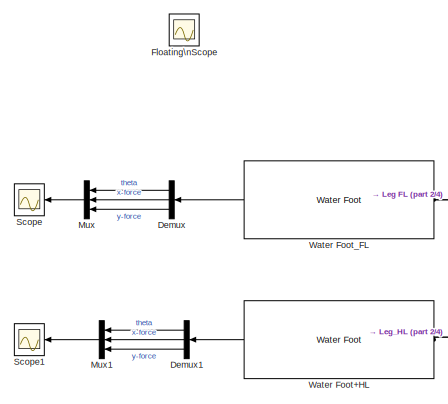
[diagram: root canvas - part 1/4, top left region]
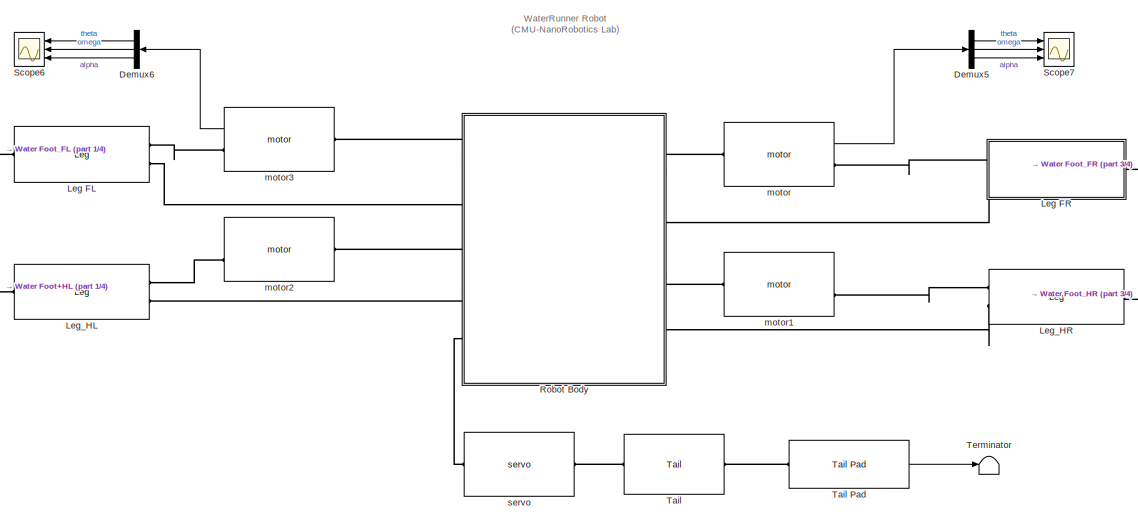
[diagram: root canvas - part 2/4, top center region]
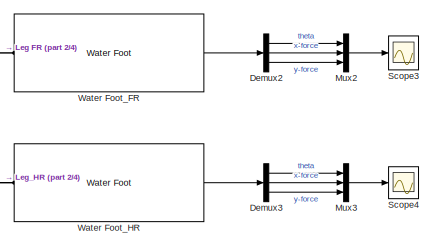
[diagram: root canvas - part 3/4, top right region]
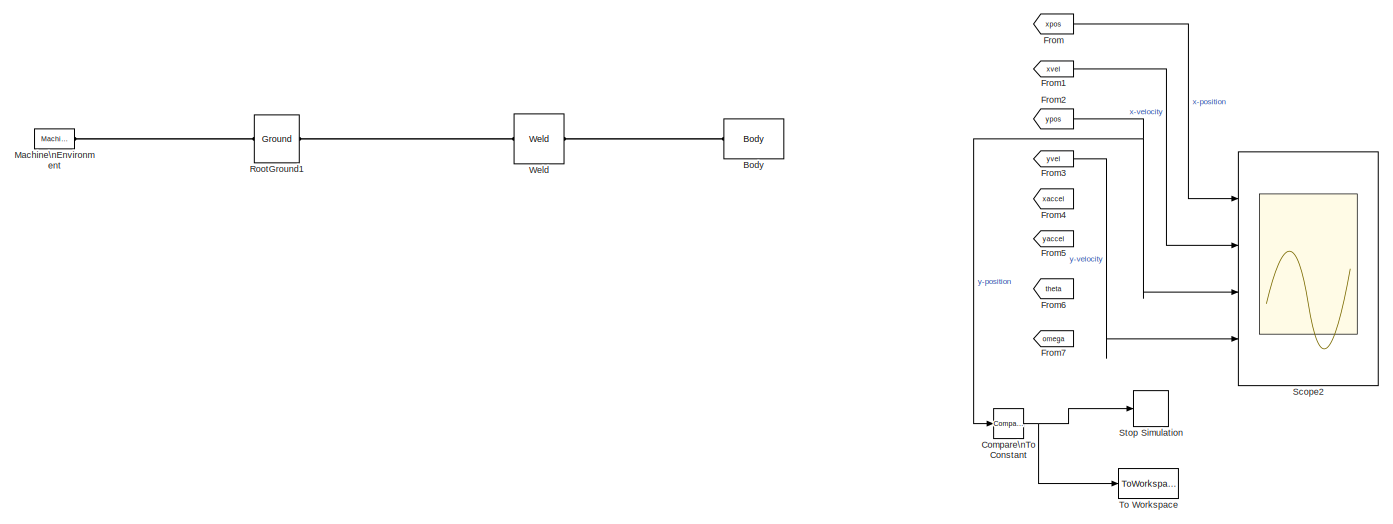
[diagram: root canvas - part 4/4, bottom center region]
MODEL WaterRunner
KIND model
BLOCK [Reference] Body  REF=mblibv1/Bodies/Body
  AttachedToCS = CG
  BodyColor = [0.83137 0.81569 0.78431]
  BodyColorSelMode = COLORPALETTE
  CG = Left$CG$[0 0 0]$WORLD$WORLD$m$[0 0 0]$Euler X-Y-Z$deg$WORLD$true$none
  CGPos = [0 0 0]
  CGRot = [0 0 0]
  CS0Pos = []
  CS0Rot = []
  CS10Pos = []
  CS10Rot = []
  CS11Pos = []
  CS11Rot = []
  CS12Pos = []
  CS12Rot = []
  CS13Pos = []
  CS13Rot = []
  CS14Pos = []
  CS14Rot = []
  CS15Pos = []
  CS15Rot = []
  CS16Pos = []
  CS16Rot = []
  CS17Pos = []
  CS17Rot = []
  CS18Pos = []
  CS18Rot = []
  CS19Pos = []
  CS19Rot = []
  CS1Pos = [-0.5 water_level -0.2 ]
  CS1Rot = [0 0 0]
  CS20Pos = []
  CS20Rot = []
  CS2Pos = [-0.5 water_level 0.2 ]
  CS2Rot = [0 0 0]
  CS3Pos = [4 water_level -0.2 ]
  CS3Rot = [0 0 0]
  CS4Pos = [4 water_level 0.2 ]
  CS4Rot = [0 0 0]
  CS5Pos = []
  CS5Rot = []
  CS6Pos = []
  CS6Rot = []
  CS7Pos = []
  CS7Rot = []
  CS8Pos = []
  CS8Rot = []
  CS9Pos = []
  CS9Rot = []
  ClassName = Body
  Density = 1
  DensityUnits = kg/m^3
  DensityUse = false
  DialogClass = MechanicalBodyBlock
  GraphicsMode = CONVHULL
  Inertia = eye(3)
  InertiaUnits = kg*m^2
  LConnTagsString = CG
  Mass = 1
  MassUnits = kg
  Ports = [0, 0, 0, 0, 0, 1]
  SID = 276
  Shape = Cylinder
  ShapeDims = [1 1]
  ShapeUnits = m
  ShapeUse = false
  SourceBlock = mblibv1/Bodies/Body
  SourceType = Body
  UpdateFromCAD = off
  WorkingFrames = Left$CS1$[-0.5 water_level -0.2 ]$CG$CG$m$[0 0 0]$Euler X-Y-Z$deg$WORLD$false$none#Left$CS2$[-0.5 water_level 0.2 ]$CG$CG$m$[0 0 0]$Euler X-Y-Z$deg$WORLD$false$none#Left$CS3$[4 water_level -0.2 ]$CG$CG$m$[0 0 0]$Euler X-Y-Z$deg$WORLD$false$none#Left$CS4$[4 water_level 0.2 ]$CG$CG$m$[0 0 0]$Euler X-Y-Z$deg$WORLD$false$none
BLOCK [Reference] Compare\nTo Constant  REF=simulink/Logic and Bit\nOperations/Compare\nTo Constant
  OutDataTypeStr = boolean
  Ports = [1, 1]
  SID = 1377
  SourceBlock = simulink/Logic and Bit\nOperations/Compare\nTo Constant
  SourceType = Compare To Constant
  ZeroCross = on
  const = -.03
  relop = <
BLOCK [Demux] Demux
  DisplayOption = bar
  Outputs = 3
  Ports = [1, 3]
  SID = 1210
BLOCK [Demux] Demux1
  DisplayOption = bar
  Outputs = 3
  Ports = [1, 3]
  SID = 1303
BLOCK [Demux] Demux2
  DisplayOption = bar
  Outputs = 3
  Ports = [1, 3]
  SID = 1311
BLOCK [Demux] Demux3
  DisplayOption = bar
  Outputs = 3
  Ports = [1, 3]
  SID = 1318
BLOCK [Demux] Demux5
  DisplayOption = bar
  Outputs = 3
  Ports = [1, 3]
  SID = 1400
BLOCK [Demux] Demux6
  DisplayOption = bar
  Outputs = 3
  Ports = [1, 3]
  SID = 1413
BLOCK [Scope] Floating\nScope
  DataFormat = StructureWithTime
  Floating = on
  IOType = viewer
  NumInputPorts = 1
  Ports = []
  SID = 1208
  SampleTime = 0
  SaveName = ScopeData1
  ShowLegends = off
BLOCK [From] From
  GotoTag = xpos
  SID = 1245
  TagVisibility = global
BLOCK [From] From1
  GotoTag = xvel
  SID = 1251
  TagVisibility = global
BLOCK [From] From2
  GotoTag = ypos
  SID = 1266
  TagVisibility = global
BLOCK [From] From3
  GotoTag = yvel
  SID = 1267
  TagVisibility = global
BLOCK [From] From4
  GotoTag = xaccel
  SID = 1373
  TagVisibility = global
BLOCK [From] From5
  GotoTag = yaccel
  SID = 1374
  TagVisibility = global
BLOCK [From] From6
  GotoTag = theta
  SID = 1444
  TagVisibility = global
BLOCK [From] From7
  GotoTag = omega
  SID = 1445
  TagVisibility = global
BLOCK [Reference] Leg FL  REF=WaterRunner_lib/Leg
  Ports = [0, 0, 0, 0, 0, 2, 1]
  SID = 1370
  SourceBlock = WaterRunner_lib/Leg
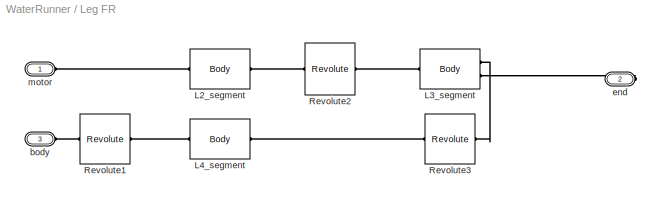
BLOCK [SubSystem] Leg FR
  AncestorBlock = WaterRunner_lib/Leg
  FunctionWithSeparateData = off
  MaskHideContents = off
  MinAlgLoopOccurrences = off
  Opaque = off
  Ports = [0, 0, 0, 0, 0, 2, 1]
  PropExecContextOutsideSubsystem = off
  RTWSystemCode = Auto
  RequestExecContextInheritance = off
  SID = 1368
BLOCK [Reference] Leg FR/L2_segment  REF=mblibv1/Bodies/Body
  AttachedToCS = CG
  BodyColor = [0 0 0]
  BodyColorSelMode = COLORPALETTE
  CG = Left$CG$L2_CG$CS1$CS1$m$[0 0 0]$Euler X-Y-Z$deg$WORLD$false$none
  CGPos = L2_CG
  CGRot = [0 0 0]
  CS0Pos = []
  CS0Rot = []
  CS10Pos = []
  CS10Rot = []
  CS11Pos = []
  CS11Rot = []
  CS12Pos = []
  CS12Rot = []
  CS13Pos = []
  CS13Rot = []
  CS14Pos = []
  CS14Rot = []
  CS15Pos = []
  CS15Rot = []
  CS16Pos = []
  CS16Rot = []
  CS17Pos = []
  CS17Rot = []
  CS18Pos = []
  CS18Rot = []
  CS19Pos = []
  CS19Rot = []
  CS1Pos = L2_CS1
  CS1Rot = [0 0 0]
  CS20Pos = []
  CS20Rot = []
  CS2Pos = L2_CS2
  CS2Rot = [0 0 0]
  CS3Pos = []
  CS3Rot = []
  CS4Pos = []
  CS4Rot = []
  CS5Pos = []
  CS5Rot = []
  CS6Pos = []
  CS6Rot = []
  CS7Pos = []
  CS7Rot = []
  CS8Pos = []
  CS8Rot = []
  CS9Pos = []
  CS9Rot = []
  ClassName = Body
  Density = 1
  DensityUnits = kg/m^3
  DensityUse = false
  DialogClass = MechanicalBodyBlock
  GraphicsMode = CONVHULL
  Inertia = L2_inertia
  InertiaUnits = kg*m^2
  LConnTagsString = CS1
  Mass = L2_mass
  MassUnits = kg
  Ports = [0, 0, 0, 0, 0, 1, 1]
  RConnTagsString = CS2
  SID = 1368:43
  Shape = Cylinder
  ShapeDims = [1 1]
  ShapeUnits = m
  ShapeUse = false
  SourceBlock = mblibv1/Bodies/Body
  SourceType = Body
  UpdateFromCAD = off
  WorkingFrames = Left$CS1$L2_CS1$Adjoining$Adjoining$m$[0 0 0]$Euler X-Y-Z$deg$WORLD$true$none#Right$CS2$L2_CS2$CS1$CS1$m$[0 0 0]$Euler X-Y-Z$deg$WORLD$true$none
BLOCK [Reference] Leg FR/L3_segment  REF=mblibv1/Bodies/Body
  AttachedToCS = CG
  BodyColor = [0 0 0]
  BodyColorSelMode = COLORPALETTE
  CG = Left$CG$L3_CG$CS1$CS1$m$[0 0 0]$Euler X-Y-Z$rad$CS1$false$none
  CGPos = L3_CG
  CGRot = [0 0 0]
  CS0Pos = []
  CS0Rot = []
  CS10Pos = []
  CS10Rot = []
  CS11Pos = []
  CS11Rot = []
  CS12Pos = []
  CS12Rot = []
  CS13Pos = []
  CS13Rot = []
  CS14Pos = []
  CS14Rot = []
  CS15Pos = []
  CS15Rot = []
  CS16Pos = []
  CS16Rot = []
  CS17Pos = []
  CS17Rot = []
  CS18Pos = []
  CS18Rot = []
  CS19Pos = []
  CS19Rot = []
  CS1Pos = L3_CS1
  CS1Rot = L3_ori
  CS20Pos = []
  CS20Rot = []
  CS2Pos = L3_CS2
  CS2Rot = [0 0 0]
  CS3Pos = L3_CS3
  CS3Rot = [0 0 0]
  CS4Pos = []
  CS4Rot = []
  CS5Pos = []
  CS5Rot = []
  CS6Pos = []
  CS6Rot = []
  CS7Pos = []
  CS7Rot = []
  CS8Pos = []
  CS8Rot = []
  CS9Pos = []
  CS9Rot = []
  ClassName = Body
  Density = 1
  DensityUnits = kg/m^3
  DensityUse = false
  DialogClass = MechanicalBodyBlock
  GraphicsMode = CONVHULL
  Inertia = L3_inertia
  InertiaUnits = kg*m^2
  LConnTagsString = CS1
  Mass = L3_mass
  MassUnits = kg
  Ports = [0, 0, 0, 0, 0, 1, 2]
  RConnTagsString = CS2|CS3
  SID = 1368:44
  Shape = Cylinder
  ShapeDims = [1 1]
  ShapeUnits = m
  ShapeUse = false
  SourceBlock = mblibv1/Bodies/Body
  SourceType = Body
  UpdateFromCAD = off
  WorkingFrames = Left$CS1$L3_CS1$Adjoining$Adjoining$m$L3_ori$Euler X-Y-Z$rad$Adjoining$true$none#Right$CS2$L3_CS2$CS1$CS1$m$[0 0 0]$Euler X-Y-Z$rad$CS1$true$none#Right$CS3$L3_CS3$CS1$CS1$m$[0 0 0]$Euler X-Y-Z$rad$CS1$true$none
BLOCK [Reference] Leg FR/L4_segment  REF=mblibv1/Bodies/Body
  AttachedToCS = CG
  BodyColor = [0 0 0]
  BodyColorSelMode = COLORPALETTE
  CG = Left$CG$L4_CG$CS1$CS1$m$[0 0 0]$Euler X-Y-Z$rad$CS1$false$none
  CGPos = L4_CG
  CGRot = [0 0 0]
  CS0Pos = []
  CS0Rot = []
  CS10Pos = []
  CS10Rot = []
  CS11Pos = []
  CS11Rot = []
  CS12Pos = []
  CS12Rot = []
  CS13Pos = []
  CS13Rot = []
  CS14Pos = []
  CS14Rot = []
  CS15Pos = []
  CS15Rot = []
  CS16Pos = []
  CS16Rot = []
  CS17Pos = []
  CS17Rot = []
  CS18Pos = []
  CS18Rot = []
  CS19Pos = []
  CS19Rot = []
  CS1Pos = L4_CS1
  CS1Rot = L4_ori
  CS20Pos = []
  CS20Rot = []
  CS2Pos = L4_CS2
  CS2Rot = [0 0 0]
  CS3Pos = []
  CS3Rot = []
  CS4Pos = []
  CS4Rot = []
  CS5Pos = []
  CS5Rot = []
  CS6Pos = []
  CS6Rot = []
  CS7Pos = []
  CS7Rot = []
  CS8Pos = []
  CS8Rot = []
  CS9Pos = []
  CS9Rot = []
  ClassName = Body
  Density = 1
  DensityUnits = kg/m^3
  DensityUse = false
  DialogClass = MechanicalBodyBlock
  GraphicsMode = CONVHULL
  Inertia = L4_inertia
  InertiaUnits = kg*m^2
  LConnTagsString = CS1
  Mass = L4_mass
  MassUnits = kg
  Ports = [0, 0, 0, 0, 0, 1, 1]
  RConnTagsString = CS2
  SID = 1368:45
  Shape = Cylinder
  ShapeDims = [1 1]
  ShapeUnits = m
  ShapeUse = false
  SourceBlock = mblibv1/Bodies/Body
  SourceType = Body
  UpdateFromCAD = off
  WorkingFrames = Left$CS1$L4_CS1$Adjoining$Adjoining$m$L4_ori$Euler X-Y-Z$rad$Adjoining$true$none#Right$CS2$L4_CS2$CS1$CS1$m$[0 0 0]$Euler X-Y-Z$rad$CS1$true$none
BLOCK [Reference] Leg FR/Revolute1  REF=mblibv1/Joints/Revolute
  ClassName = Joint
  CutJoint = off
  DialogClass = JointBlock
  LConnTagsString = __newl0
  MarkAsCut = off
  NumSAPorts = 0
  Ports = [0, 0, 0, 0, 0, 1, 1]
  PrimitiveProps = R1$World$[0 0 1]$revolute
  Primitives = prismatic
  R1Axis = [0 0 1]
  RConnTagsString = __newr0
  SID = 1368:46
  SourceBlock = mblibv1/Joints/Revolute
  SourceType = Revolute
  UpdateFromCAD = off
BLOCK [Reference] Leg FR/Revolute2  REF=mblibv1/Joints/Revolute
  ClassName = Joint
  CutJoint = on
  DialogClass = JointBlock
  LConnTagsString = __newl0
  MarkAsCut = off
  NumSAPorts = 0
  Ports = [0, 0, 0, 0, 0, 1, 1]
  PrimitiveProps = R1$World$[0 0 1]$revolute
  Primitives = prismatic
  R1Axis = [0 0 1]
  RConnTagsString = __newr0
  SID = 1368:47
  SourceBlock = mblibv1/Joints/Revolute
  SourceType = Revolute
  UpdateFromCAD = off
BLOCK [Reference] Leg FR/Revolute3  REF=mblibv1/Joints/Revolute
  ClassName = Joint
  CutJoint = off
  DialogClass = JointBlock
  LConnTagsString = __newl0
  MarkAsCut = off
  NumSAPorts = 0
  Ports = [0, 0, 0, 0, 0, 1, 1]
  PrimitiveProps = R1$World$[0 0 1]$revolute
  Primitives = prismatic
  R1Axis = [0 0 1]
  RConnTagsString = __newr0
  SID = 1368:48
  SourceBlock = mblibv1/Joints/Revolute
  SourceType = Revolute
  UpdateFromCAD = off
BLOCK [PMIOPort] Leg FR/body
  Port = 3
  SID = 1368:51
  Side = Left
BLOCK [PMIOPort] Leg FR/end
  Port = 2
  SID = 1368:50
  Side = Right
BLOCK [PMIOPort] Leg FR/motor
  Port = 1
  SID = 1368:49
  Side = Left
BLOCK [Reference] Leg_HL  REF=WaterRunner_lib/Leg
  Ports = [0, 0, 0, 0, 0, 2, 1]
  SID = 1297
  SourceBlock = WaterRunner_lib/Leg
BLOCK [Reference] Leg_HR  REF=WaterRunner_lib/Leg
  Ports = [0, 0, 0, 0, 0, 2, 1]
  SID = 1299
  SourceBlock = WaterRunner_lib/Leg
BLOCK [Reference] Machine\nEnvironment  REF=mblibv1/Bodies/Machine\nEnvironment
  AnalysisType = Forward dynamics
  AngularAssemblyTolerance = 1e-3
  AngularAssemblyToleranceUnits = rad
  BodyColorSelMode = Use model default
  BodyVisualizationType = Use model default body geometries
  ClassName = Environment
  ConstraintAbsTolerance = 1e-4
  ConstraintRelTolerance = 1e-4
  ConstraintSolverType = Stabilizing
  DefaultBodyColor = [1 0 0]
  DialogTemplateClass = MECH.MachineEnvironment
  Dimensionality = Auto-detect
  Gravity = [0 -9.81 0]
  GravityAsSignal = off
  GravityUnits = m/s^2
  LinearAssemblyTolerance = 1e-3
  LinearAssemblyToleranceUnits = m
  PerturbationSize = 1e-5
  PhysicalDomain = Mechanical
  PortType = env
  Ports = [0, 0, 0, 0, 0, 0, 1]
  RedundancyAnalysisTolerance = 1e-14
  RedundancyAnalysisToleranceType = Automatically select tolerance
  SID = 1329
  SourceBlock = mblibv1/Bodies/Machine\nEnvironment
  SourceType = Machine Environment
  StatePerturbationType = Fixed
  SyncWhenCopied = off
  UseRobustSingularityHandling = off
  VisualizeMachine = on
BLOCK [Mux] Mux
  DisplayOption = bar
  Inputs = 3
  Ports = [3, 1]
  SID = 1213
BLOCK [Mux] Mux1
  DisplayOption = bar
  Inputs = 3
  Ports = [3, 1]
  SID = 1304
BLOCK [Mux] Mux2
  DisplayOption = bar
  Inputs = 3
  Ports = [3, 1]
  SID = 1312
BLOCK [Mux] Mux3
  DisplayOption = bar
  Inputs = 3
  Ports = [3, 1]
  SID = 1319
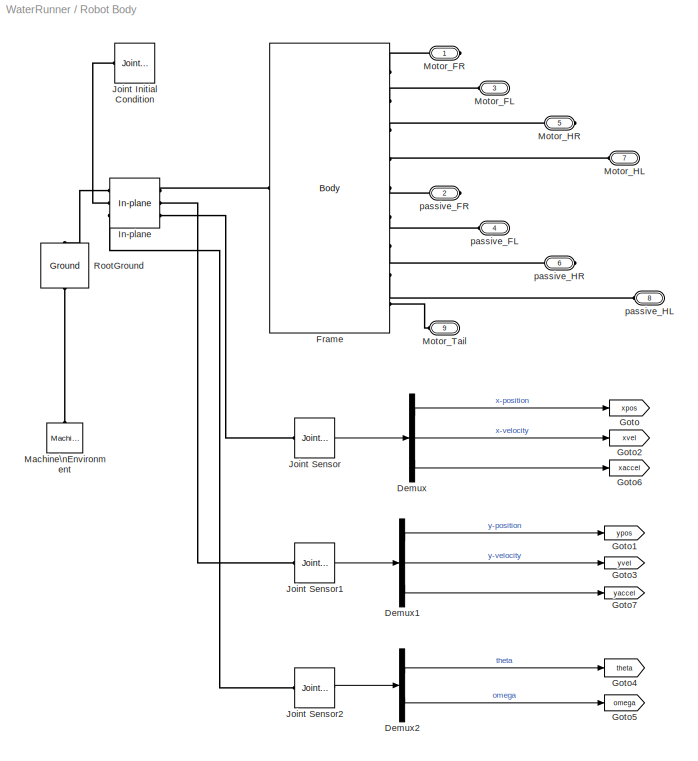
BLOCK [SubSystem] Robot Body
  AncestorBlock = WaterRunner_lib/Robot Body
  FunctionWithSeparateData = off
  MaskHideContents = off
  MinAlgLoopOccurrences = off
  Opaque = off
  Ports = [0, 0, 0, 0, 0, 5, 4]
  PropExecContextOutsideSubsystem = off
  RTWSystemCode = Auto
  RequestExecContextInheritance = off
  SID = 1291
BLOCK [Demux] Robot Body/Demux
  DisplayOption = bar
  Outputs = 3
  Ports = [1, 3]
  SID = 1291:128
BLOCK [Demux] Robot Body/Demux1
  DisplayOption = bar
  Outputs = 3
  Ports = [1, 3]
  SID = 1291:129
BLOCK [Demux] Robot Body/Demux2
  DisplayOption = bar
  Outputs = 2
  Ports = [1, 2]
  SID = 1291:295
BLOCK [Reference] Robot Body/Frame  REF=mblibv1/Bodies/Body
  AttachedToCS = CG
  BodyColor = [0 0 1]
  BodyColorSelMode = COLORPALETTE
  CG = Left$CG$frame_CG$WORLD$WORLD$m$[0 0 0]$Euler X-Y-Z$deg$WORLD$false$none
  CGPos = frame_CG
  CGRot = [0 0 0]
  CS0Pos = []
  CS0Rot = []
  CS10Pos = frame_passive_FR
  CS10Rot = [0 0 0]
  CS11Pos = frame_passive_FL
  CS11Rot = [0 0 0]
  CS12Pos = frame_passive_HR
  CS12Rot = [0 0 0]
  CS13Pos = frame_passive_HL
  CS13Rot = [0 0 0]
  CS14Pos = frame_motor_Tail
  CS14Rot = [0 0 0]
  CS15Pos = []
  CS15Rot = []
  CS16Pos = []
  CS16Rot = []
  CS17Pos = []
  CS17Rot = []
  CS18Pos = []
  CS18Rot = []
  CS19Pos = []
  CS19Rot = []
  CS1Pos = frame_CA
  CS1Rot = [0 0 0]
  CS20Pos = []
  CS20Rot = []
  CS2Pos = frame_FR
  CS2Rot = [0 0 0]
  CS3Pos = frame_HR
  CS3Rot = [0 0 0]
  CS4Pos = frame_FL
  CS4Rot = [0 0 0]
  CS5Pos = frame_HL
  CS5Rot = [0 0 0]
  CS6Pos = frame_motor_FR
  CS6Rot = [0 0 0]
  CS7Pos = frame_motor_FL
  CS7Rot = [0 0 0]
  CS8Pos = frame_motor_HR
  CS8Rot = [0 0 0]
  CS9Pos = frame_motor_HL
  CS9Rot = [0 0 0]
  ClassName = Body
  Density = 1
  DensityUnits = kg/m^3
  DensityUse = false
  DialogClass = MechanicalBodyBlock
  GraphicsMode = CONVHULL
  Inertia = frame_inertia
  InertiaUnits = kg*m^2
  LConnTagsString = CS1
  Mass = frame_mass
  MassUnits = kg
  Ports = [0, 0, 0, 0, 0, 1, 9]
  RConnTagsString = CS6|CS7|CS8|CS9|CS10|CS11|CS12|CS13|CS14
  SID = 1291:130
  Shape = Cylinder
  ShapeDims = [1 1]
  ShapeUnits = m
  ShapeUse = false
  SourceBlock = mblibv1/Bodies/Body
  SourceType = Body
  UpdateFromCAD = off
  WorkingFrames = Left$CS1$frame_CA$World$World$m$[0 0 0]$Euler X-Y-Z$deg$WORLD$true$none#Right$CS2$frame_FR$World$World$m$[0 0 0]$Euler X-Y-Z$deg$WORLD$false$none#Right$CS4$frame_FL$World$World$m$[0 0 0]$Euler X-Y-Z$deg$WORLD$false$none#Right$CS3$frame_HR$World$World$m$[0 0 0]$Euler X-Y-Z$deg$WORLD$false$none#Right$CS5$frame_HL$WORLD$WORLD$m$[0 0 0]$Euler X-Y-Z$deg$WORLD$false$none#Right$CS6$frame_motor_FR$WORLD$W...<+693ch>
BLOCK [Goto] Robot Body/Goto
  GotoTag = xpos
  SID = 1291:131
  TagVisibility = global
BLOCK [Goto] Robot Body/Goto1
  GotoTag = ypos
  SID = 1291:132
  TagVisibility = global
BLOCK [Goto] Robot Body/Goto2
  GotoTag = xvel
  SID = 1291:133
  TagVisibility = global
BLOCK [Goto] Robot Body/Goto3
  GotoTag = yvel
  SID = 1291:134
  TagVisibility = global
BLOCK [Goto] Robot Body/Goto4
  GotoTag = theta
  SID = 1291:296
  TagVisibility = global
BLOCK [Goto] Robot Body/Goto5
  GotoTag = omega
  SID = 1291:297
  TagVisibility = global
BLOCK [Goto] Robot Body/Goto6
  GotoTag = xaccel
  SID = 1291:494
  TagVisibility = global
BLOCK [Goto] Robot Body/Goto7
  GotoTag = yaccel
  SID = 1291:495
  TagVisibility = global
BLOCK [Reference] Robot Body/In-plane  REF=mblibv1/Joints/In-plane
  ClassName = InplaneJoint
  CutJoint = off
  DialogClass = JointBlock
  LConnTagsString = __newl0|SA1|SA2
  MarkAsCut = off
  NumSAPorts = 4
  P1Axis = [1 0 0]
  P2Axis = [0 1 0]
  Ports = [0, 0, 0, 0, 0, 3, 3]
  PrimitiveProps = P1$World$[1 0 0]$prismatic#P2$World$[0 1 0]$prismatic
  Primitives = prismatic
  RConnTagsString = __newr0|SA1|SA2
  SID = 1291:527
  SourceBlock = mblibv1/Joints/In-plane
  SourceType = In-plane
  UpdateFromCAD = off
BLOCK [Reference] Robot Body/Joint Initial Condition  REF=mblibv1/Sensors & \nActuators/Joint Initial Condition
  ClassName = InitialCondition
  DialogClass = InitialConditionBlock
  InitialConditions = P1$true$0$m$deg$0$m/s$deg/s#P2$false$initRobHeight$m$deg$0$m/s$deg/s#P3$false$0$m$deg$0$m/s$deg/s#R1$false$0$m$rad$0$m/s$rad/s#R2$false$0$m$deg$0$m/s$deg/s#R3$false$0$m$deg$0$m/s$deg/s#S$false$0$m$deg$0$m/s$deg/s
  LeftPortType = blob
  P1PIC = 0
  P1VIC = 0
  P2PIC = 0
  P2VIC = 0
  P3PIC = 0
  P3VIC = 0
  PhysicalDomain = mechanical
  Ports = [0, 0, 0, 0, 0, 0, 1]
  R1PIC = 0
  R1VIC = 0
  R2PIC = 0
  R2VIC = 0
  R3PIC = 0
  R3VIC = 0
  RightPortType = blob
  SID = 1291:136
  SPIC = 0
  SVIC = 0
  SourceBlock = mblibv1/Sensors & \nActuators/Joint Initial Condition
  SourceType = Joint Initial Condition
  UpdateFromCAD = off
BLOCK [Reference] Robot Body/Joint Sensor  REF=mblibv1/Sensors & \nActuators/Joint Sensor
  Acceleration = on
  AccelerationUnits = m/s^2
  ActiveIO = on
  Angle = on
  AngleUnits = deg
  ArcAcceleration = off
  ArcAccelerationUnits = deg/s^2
  ArcVelocity = off
  ArcVelocityUnits = deg/s
  ClassName = JointSensor
  CoordPosition = on
  CoordPositionUnits = m
  DialogClass = MechanicalSensorBlock
  Force = off
  ForceUnits = N
  Muxed = on
  OutputVector = [1]
  PhysicalDomain = Mechanical
  PortType = blob
  Ports = [0, 1, 0, 0, 0, 1]
  Pose = off
  Primitive = P1
  Quaternion = on
  QuaternionDDT = off
  QuaternionDT = off
  QuaternionUnits = off
  ReactionForce = off
  ReactionForceUnits = N
  ReactionMoment = off
  ReactionMomentUnits = N*m
  ReactionReferenceFrame = Absolute (World)
  ReactionSensedSide = Base
  ReferenceFrame = Absolute (World)
  SID = 1291:137
  SourceBlock = mblibv1/Sensors & \nActuators/Joint Sensor
  SourceType = Joint Sensor
  Torque = off
  TorqueUnits = N*m
  UpdateFromCAD = off
  Velocity = on
  VelocityUnits = m/s
  Width = 3
BLOCK [Reference] Robot Body/Joint Sensor1  REF=mblibv1/Sensors & \nActuators/Joint Sensor
  Acceleration = on
  AccelerationUnits = m/s^2
  ActiveIO = on
  Angle = on
  AngleUnits = deg
  ArcAcceleration = off
  ArcAccelerationUnits = deg/s^2
  ArcVelocity = off
  ArcVelocityUnits = deg/s
  ClassName = JointSensor
  CoordPosition = on
  CoordPositionUnits = m
  DialogClass = MechanicalSensorBlock
  Force = off
  ForceUnits = N
  Muxed = on
  OutputVector = [1]
  PhysicalDomain = Mechanical
  PortType = blob
  Ports = [0, 1, 0, 0, 0, 1]
  Pose = off
  Primitive = P2
  Quaternion = on
  QuaternionDDT = off
  QuaternionDT = off
  QuaternionUnits = off
  ReactionForce = off
  ReactionForceUnits = N
  ReactionMoment = off
  ReactionMomentUnits = N*m
  ReactionReferenceFrame = Absolute (World)
  ReactionSensedSide = Base
  ReferenceFrame = Absolute (World)
  SID = 1291:138
  SourceBlock = mblibv1/Sensors & \nActuators/Joint Sensor
  SourceType = Joint Sensor
  Torque = off
  TorqueUnits = N*m
  UpdateFromCAD = off
  Velocity = on
  VelocityUnits = m/s
  Width = 3
BLOCK [Reference] Robot Body/Joint Sensor2  REF=mblibv1/Sensors & \nActuators/Joint Sensor
  Acceleration = off
  AccelerationUnits = m/s^2
  ActiveIO = on
  Angle = on
  AngleUnits = rad
  ArcAcceleration = off
  ArcAccelerationUnits = deg/s^2
  ArcVelocity = on
  ArcVelocityUnits = rad/s
  ClassName = JointSensor
  CoordPosition = on
  CoordPositionUnits = m
  DialogClass = MechanicalSensorBlock
  Force = off
  ForceUnits = N
  Muxed = on
  OutputVector = [1]
  PhysicalDomain = Mechanical
  PortType = blob
  Ports = [0, 1, 0, 0, 0, 1]
  Pose = off
  Primitive = P1
  Quaternion = on
  QuaternionDDT = off
  QuaternionDT = off
  QuaternionUnits = off
  ReactionForce = off
  ReactionForceUnits = N
  ReactionMoment = off
  ReactionMomentUnits = N*m
  ReactionReferenceFrame = Absolute (World)
  ReactionSensedSide = Base
  ReferenceFrame = Absolute (World)
  SID = 1291:287
  SourceBlock = mblibv1/Sensors & \nActuators/Joint Sensor
  SourceType = Joint Sensor
  Torque = off
  TorqueUnits = N*m
  UpdateFromCAD = off
  Velocity = on
  VelocityUnits = m/s
  Width = 2
BLOCK [Reference] Robot Body/Machine\nEnvironment  REF=mblibv1/Bodies/Machine\nEnvironment
  AnalysisType = Forward dynamics
  AngularAssemblyTolerance = 1e-3
  AngularAssemblyToleranceUnits = rad
  BodyColorSelMode = Use model default
  BodyVisualizationType = Use model default body geometries
  ClassName = Environment
  ConstraintAbsTolerance = 1e-4
  ConstraintRelTolerance = 1e-4
  ConstraintSolverType = Stabilizing
  DefaultBodyColor = [1 0 0]
  DialogTemplateClass = MECH.MachineEnvironment
  Dimensionality = Auto-detect
  Gravity = [0 -9.81 0]
  GravityAsSignal = off
  GravityUnits = m/s^2
  LinearAssemblyTolerance = 1e-3
  LinearAssemblyToleranceUnits = m
  PerturbationSize = 1e-5
  PhysicalDomain = Mechanical
  PortType = env
  Ports = [0, 0, 0, 0, 0, 0, 1]
  RedundancyAnalysisTolerance = 1e-14
  RedundancyAnalysisToleranceType = Automatically select tolerance
  SID = 1291:139
  SourceBlock = mblibv1/Bodies/Machine\nEnvironment
  SourceType = Machine Environment
  StatePerturbationType = Fixed
  SyncWhenCopied = off
  UseRobustSingularityHandling = off
  VisualizeMachine = on
BLOCK [PMIOPort] Robot Body/Motor_FL
  Port = 3
  SID = 1291:143
  Side = Left
BLOCK [PMIOPort] Robot Body/Motor_FR
  Port = 1
  SID = 1291:141
  Side = Right
BLOCK [PMIOPort] Robot Body/Motor_HL
  Port = 7
  SID = 1291:147
  Side = Left
BLOCK [PMIOPort] Robot Body/Motor_HR
  Port = 5
  SID = 1291:145
  Side = Right
BLOCK [PMIOPort] Robot Body/Motor_Tail
  Port = 9
  SID = 1291:229
  Side = Left
BLOCK [Reference] Robot Body/RootGround  REF=mblibv1/Bodies/Ground
  ClassName = Ground
  CoordPosition = [0 0 0]
  CoordPositionUnits = m
  DialogClass = GroundBlock
  LeftPortType = env
  MachineId = [0 0]
  PhysicalDomain = Mechanical
  Ports = [0, 0, 0, 0, 0, 1, 1]
  RightPortType = workingframe
  SID = 1291:140
  ShowEnvPort = on
  SourceBlock = mblibv1/Bodies/Ground
  SourceType = Ground
  StateVectorMgrId = -1
  UpdateFromCAD = on
  UserData = DataTag0
  UserDataPersistent = on
BLOCK [PMIOPort] Robot Body/passive_FL
  Port = 4
  SID = 1291:144
  Side = Left
BLOCK [PMIOPort] Robot Body/passive_FR
  Port = 2
  SID = 1291:142
  Side = Right
BLOCK [PMIOPort] Robot Body/passive_HL
  Port = 8
  SID = 1291:148
  Side = Left
BLOCK [PMIOPort] Robot Body/passive_HR
  Port = 6
  SID = 1291:146
  Side = Right
BLOCK [Reference] RootGround1  REF=mblibv1/Bodies/Ground
  ClassName = Ground
  CoordPosition = [0 0 0]
  CoordPositionUnits = m
  DialogClass = GroundBlock
  LeftPortType = env
  MachineId = [0 0]
  PhysicalDomain = Mechanical
  Ports = [0, 0, 0, 0, 0, 1, 1]
  RightPortType = workingframe
  SID = 275
  ShowEnvPort = on
  SourceBlock = mblibv1/Bodies/Ground
  SourceType = Ground
  StateVectorMgrId = -1
  UpdateFromCAD = on
  UserData = DataTag1
  UserDataPersistent = on
BLOCK [Scope] Scope
  DataFormat = StructureWithTime
  Floating = off
  LegendLocations = 0.86404     0.89796    0.098643    0.064383
  LimitDataPoints = off
  NumInputPorts = 1
  Ports = [1]
  SID = 1226
  SampleTime = 0
  SaveName = FootForce_FL
  SaveToWorkspace = on
  ShowLegends = on
  TimeRange = 2
  YMax = 2
  YMin = -2.5
  ZoomMode = yonly
BLOCK [Scope] Scope1
  DataFormat = StructureWithTime
  Floating = off
  LegendLocations = 0.86352     0.90233    0.098643    0.064383
  LimitDataPoints = off
  NumInputPorts = 1
  Ports = [1]
  SID = 1305
  SampleTime = 0
  SaveName = FootForce_HL
  SaveToWorkspace = on
  ShowLegends = on
  TimeRange = 2
  YMax = 2
  YMin = -2.5
BLOCK [Scope] Scope2
  DataFormat = StructureWithTime
  Floating = off
  LimitDataPoints = off
  NumInputPorts = 4
  Ports = [4]
  SID = 1246
  SampleTime = 0
  SaveName = position
  SaveToWorkspace = on
  ShowLegends = on
  TimeRange = 10
  YMax = 3~2.5~0.035~0.4
  YMin = -0.5~0~-0.005~-0.2
  ZoomMode = yonly
BLOCK [Scope] Scope3
  DataFormat = StructureWithTime
  Floating = off
  LimitDataPoints = off
  NumInputPorts = 1
  Ports = [1]
  SID = 1313
  SampleTime = 0
  SaveName = FootForce_FR
  SaveToWorkspace = on
  ShowLegends = on
  TimeRange = 2
  YMax = 2
  YMin = -2.5
  ZoomMode = xonly
BLOCK [Scope] Scope4
  DataFormat = StructureWithTime
  Floating = off
  LegendLocations = 0.86352     0.90233    0.098643    0.064383
  LimitDataPoints = off
  NumInputPorts = 1
  Ports = [1]
  SID = 1320
  SampleTime = 0
  SaveName = FootForce_HR
  SaveToWorkspace = on
  ShowLegends = on
  TimeRange = 2
  YMax = 2
  YMin = -2.5
  ZoomMode = xonly
BLOCK [Scope] Scope6
  DataFormat = StructureWithTime
  Floating = off
  LimitDataPoints = off
  NumInputPorts = 3
  Ports = [3]
  SID = 1414
  SampleTime = 0
  SaveName = MotorMotion1
  SaveToWorkspace = on
  ShowLegends = off
  TimeRange = 2
  YMax = -2.5~0~30000
  YMin = -20~-90~-50000
  ZoomMode = yonly
BLOCK [Scope] Scope7
  DataFormat = StructureWithTime
  Floating = off
  LimitDataPoints = off
  NumInputPorts = 3
  Ports = [3]
  SID = 1402
  SampleTime = 0
  SaveName = MotorMotion
  ShowLegends = off
  TimeRange = 2
  YMax = 0~0~30000
  YMin = -17.5~-90~-70000
  ZoomMode = yonly
BLOCK [Stop] Stop Simulation
  SID = 1376
BLOCK [Reference] Tail  REF=WaterRunner_lib/Tail
  Ports = [0, 0, 0, 0, 0, 1, 1]
  SID = 1441
  SourceBlock = WaterRunner_lib/Tail
  SourceType = SubSystem
BLOCK [Reference] Tail Pad  REF=WaterRunner_lib/Tail Pad
  Ports = [0, 1, 0, 0, 0, 1]
  SID = 1442
  SourceBlock = WaterRunner_lib/Tail Pad
  SourceType = SubSystem
BLOCK [Terminator] Terminator
  SID = 1443
BLOCK [ToWorkspace] To Workspace
  MaxDataPoints = inf
  Ports = [1]
  SID = 1380
  SampleTime = -1
  SaveFormat = Timeseries
  VariableName = stopped
BLOCK [Reference] Water Foot+HL  REF=WaterRunner_lib/Water Foot
  Ports = [0, 1, 0, 0, 0, 1]
  SID = 1306
  SourceBlock = WaterRunner_lib/Water Foot
  SourceType = SubSystem
BLOCK [Reference] Water Foot_FL  REF=WaterRunner_lib/Water Foot
  Ports = [0, 1, 0, 0, 0, 1]
  SID = 1300
  SourceBlock = WaterRunner_lib/Water Foot
  SourceType = SubSystem
BLOCK [Reference] Water Foot_FR  REF=WaterRunner_lib/Water Foot
  Ports = [0, 1, 0, 0, 0, 1]
  SID = 1309
  SourceBlock = WaterRunner_lib/Water Foot
  SourceType = SubSystem
BLOCK [Reference] Water Foot_HR  REF=WaterRunner_lib/Water Foot
  Ports = [0, 1, 0, 0, 0, 1]
  SID = 1321
  SourceBlock = WaterRunner_lib/Water Foot
  SourceType = SubSystem
BLOCK [Reference] Weld  REF=mblibv1/Joints/Weld
  ClassName = Joint
  CutJoint = off
  DialogClass = JointBlock
  LConnTagsString = __newl0
  MarkAsCut = off
  NumSAPorts = 0
  Ports = [0, 0, 0, 0, 0, 1, 1]
  PrimitiveProps = W$WORLD$[0 0 0]$weld
  Primitives = weld
  RConnTagsString = __newr0
  SID = 274
  SourceBlock = mblibv1/Joints/Weld
  SourceType = Weld
  UpdateFromCAD = off
  WAxis = [0 0 0]
BLOCK [Reference] motor  REF=WaterRunner_lib/motor
  Ports = [0, 1, 0, 0, 0, 1, 1]
  SID = 1420
  SourceBlock = WaterRunner_lib/motor
  ic_angle = 0
  variableName = work_FR
BLOCK [Reference] motor1  REF=WaterRunner_lib/motor
  Ports = [0, 1, 0, 0, 0, 1, 1]
  SID = 1421
  SourceBlock = WaterRunner_lib/motor
  ic_angle = pi
  variableName = work_HR
BLOCK [Reference] motor2  REF=WaterRunner_lib/motor
  Ports = [0, 1, 0, 0, 0, 1, 1]
  SID = 1422
  SourceBlock = WaterRunner_lib/motor
  ic_angle = 0
  variableName = work_HL
BLOCK [Reference] motor3  REF=WaterRunner_lib/motor
  Ports = [0, 1, 0, 0, 0, 1, 1]
  SID = 1423
  SourceBlock = WaterRunner_lib/motor
  ic_angle = pi
  variableName = work_FL
BLOCK [Reference] servo  REF=WaterRunner_lib/servo
  Ports = [0, 0, 0, 0, 0, 1, 1]
  SID = 1440
  SourceBlock = WaterRunner_lib/servo
  VariableName = work_tail
  tail_angle = tail_angle
ANNOTATION (root): WaterRunner Robot\n(CMU-NanoRobotics Lab)
NET Compare\nTo Constant:1 -> Stop Simulation:1, To Workspace:1
LINE Demux1:1 -> Mux1:1
LINE Demux1:2 -> Mux1:2
LINE Demux1:3 -> Mux1:3
LINE Demux2:1 -> Mux2:1
LINE Demux2:2 -> Mux2:2
LINE Demux2:3 -> Mux2:3
LINE Demux3:1 -> Mux3:1
LINE Demux3:2 -> Mux3:2
LINE Demux3:3 -> Mux3:3
LINE Demux5:1 -> Scope7:1
LINE Demux5:2 -> Scope7:2
LINE Demux5:3 -> Scope7:3
LINE Demux6:1 -> Scope6:1
LINE Demux6:2 -> Scope6:2
LINE Demux6:3 -> Scope6:3
LINE Demux:1 -> Mux:1
LINE Demux:2 -> Mux:2
LINE Demux:3 -> Mux:3
LINE From1:1 -> Scope2:2
NET From2:1 -> Compare\nTo Constant:1, Scope2:3
LINE From3:1 -> Scope2:4
LINE From:1 -> Scope2:1
LINE Mux1:1 -> Scope1:1
LINE Mux2:1 -> Scope3:1
LINE Mux3:1 -> Scope4:1
LINE Mux:1 -> Scope:1
LINE Robot Body/Demux1:1 -> Robot Body/Goto1:1
LINE Robot Body/Demux1:2 -> Robot Body/Goto3:1
LINE Robot Body/Demux1:3 -> Robot Body/Goto7:1
LINE Robot Body/Demux2:1 -> Robot Body/Goto4:1
LINE Robot Body/Demux2:2 -> Robot Body/Goto5:1
LINE Robot Body/Demux:1 -> Robot Body/Goto:1
LINE Robot Body/Demux:2 -> Robot Body/Goto2:1
LINE Robot Body/Demux:3 -> Robot Body/Goto6:1
LINE Robot Body/Joint Sensor1:1 -> Robot Body/Demux1:1
LINE Robot Body/Joint Sensor2:1 -> Robot Body/Demux2:1
LINE Robot Body/Joint Sensor:1 -> Robot Body/Demux:1
LINE Tail Pad:1 -> Terminator:1
LINE Water Foot+HL:1 -> Demux1:1
LINE Water Foot_FL:1 -> Demux:1
LINE Water Foot_FR:1 -> Demux2:1
LINE Water Foot_HR:1 -> Demux3:1
LINE motor3:1 -> Demux6:1
LINE motor:1 -> Demux5:1
PLINE Body:LConn1 -- Weld:RConn1
PLINE Leg FL:LConn1 -- motor3:RConn1
PLINE Leg FL:LConn2 -- Robot Body:LConn2
PLINE Leg FL:RConn1 -- Water Foot_FL:LConn1
PLINE Leg FR/L2_segment:LConn1 -- Leg FR/motor:RConn1
PLINE Leg FR/L2_segment:RConn1 -- Leg FR/Revolute2:LConn1
PLINE Leg FR/L3_segment:LConn1 -- Leg FR/Revolute2:RConn1
PLINE Leg FR/L3_segment:RConn1 -- Leg FR/Revolute3:RConn1
PLINE Leg FR/L3_segment:RConn2 -- Leg FR/end:RConn1
PLINE Leg FR/L4_segment:LConn1 -- Leg FR/Revolute1:RConn1
PLINE Leg FR/L4_segment:RConn1 -- Leg FR/Revolute3:LConn1
PLINE Leg FR/Revolute1:LConn1 -- Leg FR/body:RConn1
PLINE Leg FR:LConn1 -- motor:RConn1
PLINE Leg FR:LConn2 -- Robot Body:RConn2
PLINE Leg FR:RConn1 -- Water Foot_FR:LConn1
PLINE Leg_HL:LConn1 -- motor2:RConn1
PLINE Leg_HL:LConn2 -- Robot Body:LConn4
PLINE Leg_HL:RConn1 -- Water Foot+HL:LConn1
PLINE Leg_HR:LConn1 -- motor1:RConn1
PLINE Leg_HR:LConn2 -- Robot Body:RConn4
PLINE Leg_HR:RConn1 -- Water Foot_HR:LConn1
PLINE Machine\nEnvironment:RConn1 -- RootGround1:LConn1
PLINE Robot Body/Frame:LConn1 -- Robot Body/In-plane:RConn1
PLINE Robot Body/Frame:RConn1 -- Robot Body/Motor_FR:RConn1
PLINE Robot Body/Frame:RConn2 -- Robot Body/Motor_FL:RConn1
PLINE Robot Body/Frame:RConn3 -- Robot Body/Motor_HR:RConn1
PLINE Robot Body/Frame:RConn4 -- Robot Body/Motor_HL:RConn1
PLINE Robot Body/Frame:RConn5 -- Robot Body/passive_FR:RConn1
PLINE Robot Body/Frame:RConn6 -- Robot Body/passive_FL:RConn1
PLINE Robot Body/Frame:RConn7 -- Robot Body/passive_HR:RConn1
PLINE Robot Body/Frame:RConn8 -- Robot Body/passive_HL:RConn1
PLINE Robot Body/Frame:RConn9 -- Robot Body/Motor_Tail:RConn1
PLINE Robot Body/In-plane:LConn1 -- Robot Body/RootGround:RConn1
PLINE Robot Body/In-plane:LConn2 -- Robot Body/Joint Initial Condition:RConn1
PLINE Robot Body/In-plane:LConn3 -- Robot Body/Joint Sensor2:LConn1
PLINE Robot Body/In-plane:RConn2 -- Robot Body/Joint Sensor1:LConn1
PLINE Robot Body/In-plane:RConn3 -- Robot Body/Joint Sensor:LConn1
PLINE Robot Body/Machine\nEnvironment:RConn1 -- Robot Body/RootGround:LConn1
PLINE Robot Body:LConn1 -- motor3:LConn1
PLINE Robot Body:LConn3 -- motor2:LConn1
PLINE Robot Body:LConn5 -- servo:LConn1
PLINE Robot Body:RConn1 -- motor:LConn1
PLINE Robot Body:RConn3 -- motor1:LConn1
PLINE RootGround1:RConn1 -- Weld:LConn1
PLINE Tail Pad:LConn1 -- Tail:RConn1
PLINE Tail:LConn1 -- servo:RConn1
note: NET lines group one-source signal fan-out (src -> all destinations, sorted); 1:1 wires keep LINE
